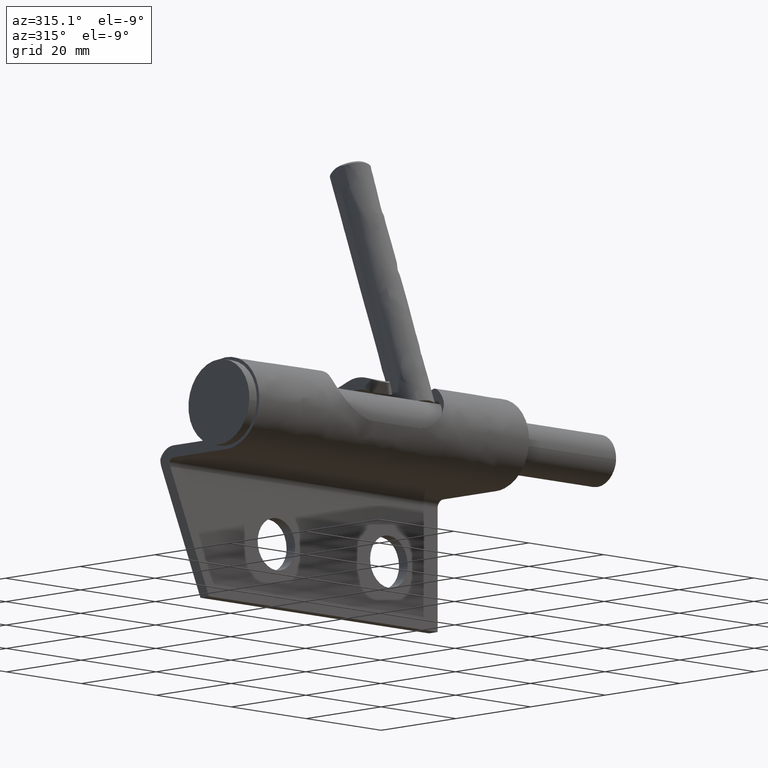
[diagram: clean part render]
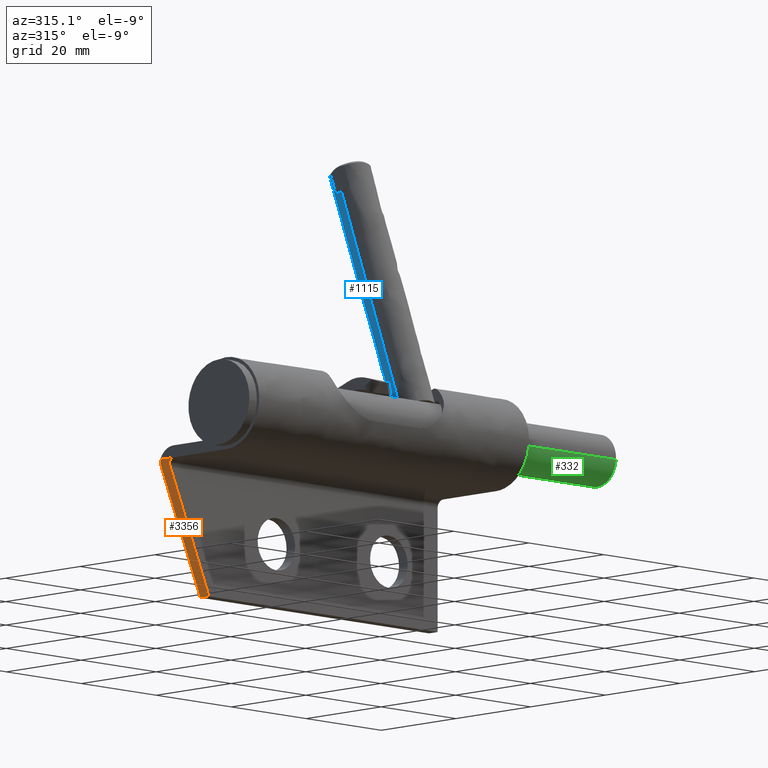
[diagram: same view with three faces highlighted in distinct colors, each labeled with its STEP entity id]
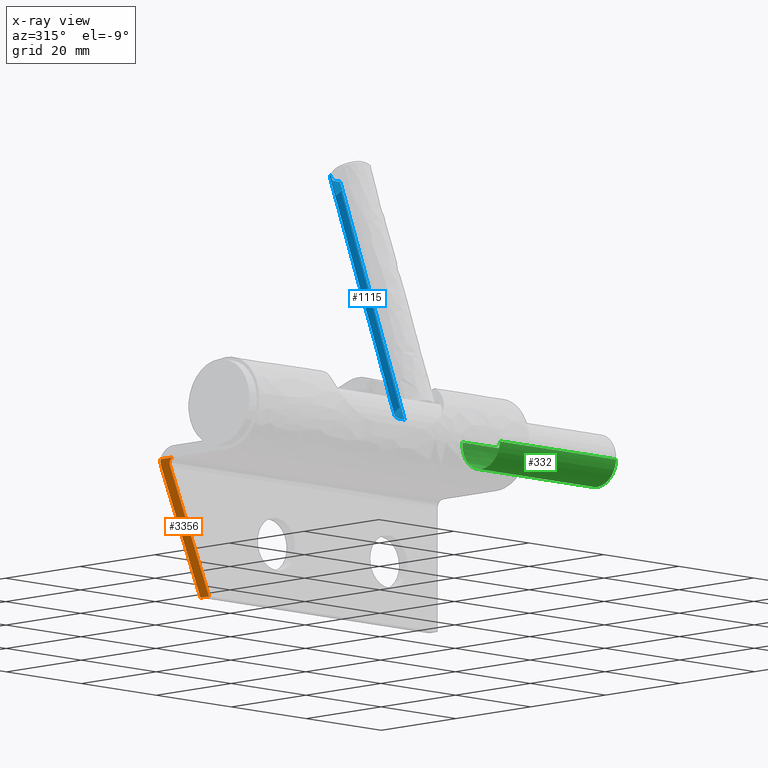
[diagram: x-ray of the same camera — body ghosted, the three highlighted faces saturated]
A machine part, auxiliary view with three faces highlighted in distinct colors.
The next image is the same camera in x-ray (body ghosted, the three faces saturated) — at least one of them is partly hidden behind the body in this view.
Their STEP definitions:

[orange] entity #3356 — the highlighted face is a freeform B-spline surface patch.
#3202=CARTESIAN_POINT('',(-59.0,-0.308580661107719,13.199996999999900));
#3203=VERTEX_POINT('',#3202);
#3239=CARTESIAN_POINT('',(-58.345239326814003,0.0,11.699999999999999));
#3240=VERTEX_POINT('',#3239);
#3246=CARTESIAN_POINT('',(-58.999999999999893,-0.308580661107720,13.199997000000000));
#3247=CARTESIAN_POINT('',(-58.686474749228303,0.0,12.481739238284700));
#3248=CARTESIAN_POINT('',(-58.345239326814102,0.0,11.699999999999999));
#3256=(BOUNDED_CURVE()B_SPLINE_CURVE(2,(#3246,#3247,#3248),.UNSPECIFIED.,.F.,.U.)CURVE()GEOMETRIC_REPRESENTATION_ITEM()QUASI_UNIFORM_CURVE()RATIONAL_B_SPLINE_CURVE((1.0,0.979488275291329,1.0))REPRESENTATION_ITEM(''));
#3257=EDGE_CURVE('',#3203,#3240,#3256,.T.);
#3276=CARTESIAN_POINT('',(-58.345238017290100,-2.299988000000085,11.699996999999900));
#3277=VERTEX_POINT('',#3276);
#3278=CARTESIAN_POINT('',(-59.0,-3.799988000000045,13.199996999999900));
#3279=VERTEX_POINT('',#3278);
#3280=CARTESIAN_POINT('',(-58.345238017290100,-2.299988000000085,11.699996999999900));
#3281=CARTESIAN_POINT('',(-58.999999999999766,-2.299988347711504,13.199996999999899));
#3282=CARTESIAN_POINT('',(-59.0,-3.799988000000045,13.199996999999900));
#3290=(BOUNDED_CURVE()B_SPLINE_CURVE(2,(#3280,#3281,#3282),.UNSPECIFIED.,.F.,.U.)CURVE()GEOMETRIC_REPRESENTATION_ITEM()QUASI_UNIFORM_CURVE()RATIONAL_B_SPLINE_CURVE((1.0,0.707106863142929,1.0))REPRESENTATION_ITEM(''));
#3291=EDGE_CURVE('',#3277,#3279,#3290,.T.);
#3323=CARTESIAN_POINT('',(-47.450550021320161,-3.989797428906502,-13.258739801307531));
#3324=CARTESIAN_POINT('',(-59.549450273722847,-3.989797428906502,14.458737477224011));
#3325=CARTESIAN_POINT('',(-47.450550021320161,0.189809496855537,-13.258739801307531));
#3326=CARTESIAN_POINT('',(-59.549450273722847,0.189809496855537,14.458737477224011));
#3327=B_SPLINE_SURFACE_WITH_KNOTS('',1,1,((#3323,#3325),(#3324,#3326)),.UNSPECIFIED.,.F.,.F.,.U.,(2,2),(2,2),(0.0,30.243047697008009),(0.0,4.179606925762039),.UNSPECIFIED.);
#3328=CARTESIAN_POINT('',(-59.0,-3.799988000000045,13.199996999999900));
#3329=CARTESIAN_POINT('',(-59.0,-0.308580661107719,13.199996999999900));
#3330=QUASI_UNIFORM_CURVE('',1,(#3328,#3329),.UNSPECIFIED.,.F.,.U.);
#3331=EDGE_CURVE('',#3279,#3203,#3330,.T.);
#3332=ORIENTED_EDGE('',*,*,#3331,.T.);
#3333=ORIENTED_EDGE('',*,*,#3257,.T.);
#3334=CARTESIAN_POINT('',(-48.0,-4.336809E-016,-12.0));
#3335=VERTEX_POINT('',#3334);
#3336=CARTESIAN_POINT('',(-58.345239326814003,0.0,11.699999999999999));
#3337=CARTESIAN_POINT('',(-48.0,-4.336809E-016,-12.0));
#3338=QUASI_UNIFORM_CURVE('',1,(#3336,#3337),.UNSPECIFIED.,.F.,.U.);
#3339=EDGE_CURVE('',#3240,#3335,#3338,.T.);
#3340=ORIENTED_EDGE('',*,*,#3339,.T.);
#3341=CARTESIAN_POINT('',(-48.0,-2.299988000000065,-12.0));
#3342=VERTEX_POINT('',#3341);
#3343=CARTESIAN_POINT('',(-48.0,-2.299988000000065,-12.0));
#3344=CARTESIAN_POINT('',(-48.0,-4.336809E-016,-12.0));
#3345=QUASI_UNIFORM_CURVE('',1,(#3343,#3344),.UNSPECIFIED.,.F.,.U.);
#3346=EDGE_CURVE('',#3342,#3335,#3345,.T.);
#3347=ORIENTED_EDGE('',*,*,#3346,.F.);
#3348=CARTESIAN_POINT('',(-58.345238017290100,-2.299988000000085,11.699996999999900));
#3349=CARTESIAN_POINT('',(-48.0,-2.299988000000065,-12.0));
#3350=QUASI_UNIFORM_CURVE('',1,(#3348,#3349),.UNSPECIFIED.,.F.,.U.);
#3351=EDGE_CURVE('',#3277,#3342,#3350,.T.);
#3352=ORIENTED_EDGE('',*,*,#3351,.F.);
#3353=ORIENTED_EDGE('',*,*,#3291,.T.);
#3354=EDGE_LOOP('',(#3332,#3333,#3340,#3347,#3352,#3353));
#3355=FACE_OUTER_BOUND('',#3354,.T.);
#3356=ADVANCED_FACE('',(#3355),#3327,.T.);

[blue] entity #1115 — the highlighted face is a freeform B-spline surface patch.
#717=CARTESIAN_POINT('',(-8.972446960488702,4.252100916761393,72.962776608670737));
#718=VERTEX_POINT('',#717);
#724=CARTESIAN_POINT('',(-10.499999999999799,2.801789091536420,73.490647110882293));
#725=VERTEX_POINT('',#724);
#726=CARTESIAN_POINT('',(-10.499999999999799,2.801789091536407,73.490647110882250));
#727=CARTESIAN_POINT('',(-9.953863932016629,3.729361606149494,73.153038218359896));
#728=CARTESIAN_POINT('',(-8.972446960488702,4.252100916761393,72.962776608670737));
#736=(BOUNDED_CURVE()B_SPLINE_CURVE(2,(#726,#727,#728),.UNSPECIFIED.,.F.,.U.)B_SPLINE_CURVE_WITH_KNOTS((3,3),(0.0,0.257814401208972),.UNSPECIFIED.)CURVE()GEOMETRIC_REPRESENTATION_ITEM()RATIONAL_B_SPLINE_CURVE((1.0,0.928548137186731,0.930781551279336))REPRESENTATION_ITEM(''));
#737=EDGE_CURVE('',#725,#718,#736,.T.);
#873=CARTESIAN_POINT('',(-6.097572105836812,4.643964010710496,72.820150061328931));
#874=VERTEX_POINT('',#873);
#888=CARTESIAN_POINT('',(-8.972446960488702,4.252100916761393,72.962776608670737));
#889=CARTESIAN_POINT('',(-8.054804407496985,4.740871591668365,72.784878575198420));
#890=CARTESIAN_POINT('',(-6.999999999999800,4.740871591668365,72.784878575198434));
#891=CARTESIAN_POINT('',(-6.542893528389560,4.740871591668365,72.784878575198434));
#892=CARTESIAN_POINT('',(-6.097572105836812,4.643964010710496,72.820150061328931));
#900=(BOUNDED_CURVE()B_SPLINE_CURVE(2,(#888,#889,#890,#891,#892),.UNSPECIFIED.,.F.,.U.)B_SPLINE_CURVE_WITH_KNOTS((3,2,3),(0.257814401208972,0.500000000000000,0.609102255925275),.UNSPECIFIED.)CURVE()GEOMETRIC_REPRESENTATION_ITEM()RATIONAL_B_SPLINE_CURVE((0.930781551279336,0.932879575000391,1.0,0.969762901581777,0.952721545763805))REPRESENTATION_ITEM(''));
#901=EDGE_CURVE('',#718,#874,#900,.T.);
#979=CARTESIAN_POINT('',(-10.999828692004799,-0.589773091649756,69.936275030934667));
#980=VERTEX_POINT('',#979);
#994=CARTESIAN_POINT('',(-10.999829083066070,-16.322708042068310,26.710404519297480));
#995=VERTEX_POINT('',#994);
#996=CARTESIAN_POINT('',(-10.999828692004799,-0.589773091649756,69.936275030934667));
#997=CARTESIAN_POINT('',(-10.999829083066070,-16.322708042068310,26.710404519297480));
#998=QUASI_UNIFORM_CURVE('',1,(#996,#997),.UNSPECIFIED.,.F.,.U.);
#999=EDGE_CURVE('',#980,#995,#998,.T.);
#1016=CARTESIAN_POINT('',(-6.097572018080046,-12.628061885795590,25.365662865755141));
#1017=VERTEX_POINT('',#1016);
#1033=CARTESIAN_POINT('',(-6.097572105836812,4.643964010710496,72.820150061328931));
#1034=CARTESIAN_POINT('',(-6.097572018080046,-12.628061885795590,25.365662865755141));
#1035=QUASI_UNIFORM_CURVE('',1,(#1033,#1034),.UNSPECIFIED.,.F.,.U.);
#1036=EDGE_CURVE('',#874,#1017,#1035,.T.);
#1041=CARTESIAN_POINT('',(-10.999828694137539,1.381118870329172,75.351253760645349));
#1042=CARTESIAN_POINT('',(-11.034734670336956,5.139728239166312,73.983231394257558));
#1043=CARTESIAN_POINT('',(-7.034905976199223,5.172529126205261,73.971292843931295));
#1044=CARTESIAN_POINT('',(-6.560127514590722,5.176422581620133,73.969875741602380));
#1045=CARTESIAN_POINT('',(-6.097572105860898,5.075764667030032,74.006512237976509));
#1046=CARTESIAN_POINT('',(-10.999828694137539,-16.765303711278740,25.494383286953660));
#1047=CARTESIAN_POINT('',(-11.034734670336956,-13.006694342441595,24.126360920565865));
#1048=CARTESIAN_POINT('',(-7.034905976199223,-12.973893455402649,24.114422370239598));
#1049=CARTESIAN_POINT('',(-6.560127514590722,-12.969999999987772,24.113005267910687));
#1050=CARTESIAN_POINT('',(-6.097572105860898,-13.070657914577872,24.149641764284819));
#1058=(BOUNDED_SURFACE()B_SPLINE_SURFACE(2,1,((#1041,#1046),(#1042,#1047),(#1043,#1048),(#1044,#1049),(#1045,#1050)),.UNSPECIFIED.,.F.,.F.,.U.)B_SPLINE_SURFACE_WITH_KNOTS((3,2,3),(2,2),(0.0,6.627385519656808,7.687767202801896),(0.0,53.056575331816887),.UNSPECIFIED.)GEOMETRIC_REPRESENTATION_ITEM()RATIONAL_B_SPLINE_SURFACE(((1.0,1.0),(0.707106781186548,0.707106781186548),(1.0,1.0),(0.953137084989848,0.953137084989848),(0.921270302782944,0.921270302782944)))REPRESENTATION_ITEM('')SURFACE());
#1059=ORIENTED_EDGE('',*,*,#737,.T.);
#1060=ORIENTED_EDGE('',*,*,#901,.T.);
#1061=ORIENTED_EDGE('',*,*,#1036,.T.);
#1062=CARTESIAN_POINT('',(-6.999999999999800,-12.531153929923150,25.330391243166851));
#1063=VERTEX_POINT('',#1062);
#1064=CARTESIAN_POINT('',(-6.999999999999800,-12.531153929923150,25.330391243166851));
#1065=CARTESIAN_POINT('',(-6.542893439486559,-12.531153929923152,25.330391243166851));
#1066=CARTESIAN_POINT('',(-6.097572018080046,-12.628061885795592,25.365662865755141));
#1074=(BOUNDED_CURVE()B_SPLINE_CURVE(2,(#1064,#1065,#1066),.UNSPECIFIED.,.F.,.U.)B_SPLINE_CURVE_WITH_KNOTS((3,3),(0.0,0.038577028218024),.UNSPECIFIED.)CURVE()GEOMETRIC_REPRESENTATION_ITEM()RATIONAL_B_SPLINE_CURVE((1.0,0.954804200131862,0.923556557438518))REPRESENTATION_ITEM(''));
#1075=EDGE_CURVE('',#1063,#1017,#1074,.T.);
#1076=ORIENTED_EDGE('',*,*,#1075,.F.);
#1077=CARTESIAN_POINT('',(-10.999829083066075,-16.322708042068314,26.710404519297473));
#1078=CARTESIAN_POINT('',(-10.999981779050110,-16.306307910794192,26.704435357782387));
#1079=CARTESIAN_POINT('',(-10.999981779050110,-16.289907151517649,26.698465967693050));
#1080=CARTESIAN_POINT('',(-10.999981779050110,-12.531153929923146,25.330391243166847));
#1081=CARTESIAN_POINT('',(-6.999999999999800,-12.531153929923150,25.330391243166851));
#1089=(BOUNDED_CURVE()B_SPLINE_CURVE(2,(#1077,#1078,#1079,#1080,#1081),.UNSPECIFIED.,.F.,.U.)B_SPLINE_CURVE_WITH_KNOTS((3,2,3),(0.748460105634809,0.750000000000000,1.0),.UNSPECIFIED.)CURVE()GEOMETRIC_REPRESENTATION_ITEM()RATIONAL_B_SPLINE_CURVE((0.996414028030505,0.998195901530986,1.0,0.707106781186548,1.0))REPRESENTATION_ITEM(''));
#1090=EDGE_CURVE('',#995,#1063,#1089,.T.);
#1091=ORIENTED_EDGE('',*,*,#1090,.F.);
#1092=ORIENTED_EDGE('',*,*,#999,.F.);
#1093=CARTESIAN_POINT('',(-10.499999999999799,1.262698015519182,69.262030474235786));
#1094=VERTEX_POINT('',#1093);
#1095=CARTESIAN_POINT('',(-10.999828692004801,-0.589773091649756,69.936275030934667));
#1096=CARTESIAN_POINT('',(-11.009003988805139,0.398191645178518,69.576685160172602));
#1097=CARTESIAN_POINT('',(-10.499999999999810,1.262698015519174,69.262030474235758));
#1105=(BOUNDED_CURVE()B_SPLINE_CURVE(2,(#1095,#1096,#1097),.UNSPECIFIED.,.F.,.U.)B_SPLINE_CURVE_WITH_KNOTS((3,3),(0.491550139312004,1.0),.UNSPECIFIED.)CURVE()GEOMETRIC_REPRESENTATION_ITEM()RATIONAL_B_SPLINE_CURVE((0.937519927451185,0.936445880540015,1.0))REPRESENTATION_ITEM(''));
#1106=EDGE_CURVE('',#980,#1094,#1105,.T.);
#1107=ORIENTED_EDGE('',*,*,#1106,.T.);
#1108=CARTESIAN_POINT('',(-10.499999999999799,2.801789091536420,73.490647110882293));
#1109=CARTESIAN_POINT('',(-10.499999999999799,1.262698015519182,69.262030474235786));
#1110=QUASI_UNIFORM_CURVE('',1,(#1108,#1109),.UNSPECIFIED.,.F.,.U.);
#1111=EDGE_CURVE('',#725,#1094,#1110,.T.);
#1112=ORIENTED_EDGE('',*,*,#1111,.F.);
#1113=EDGE_LOOP('',(#1059,#1060,#1061,#1076,#1091,#1092,#1107,#1112));
#1114=FACE_OUTER_BOUND('',#1113,.T.);
#1115=ADVANCED_FACE('',(#1114),#1058,.T.);

[green] entity #332 — the highlighted face is a freeform B-spline surface patch.
#70=CARTESIAN_POINT('',(39.999999999941537,-16.871959773955219,17.128909234164428));
#71=VERTEX_POINT('',#70);
#72=CARTESIAN_POINT('',(40.0,-18.0,17.000000000000089));
#73=VERTEX_POINT('',#72);
#74=CARTESIAN_POINT('',(39.999999999941529,-16.871959773955219,17.128909234164425));
#75=CARTESIAN_POINT('',(40.000000000000014,-17.428614196088265,17.000000000000089));
#76=CARTESIAN_POINT('',(40.0,-18.0,17.000000000000089));
#84=(BOUNDED_CURVE()B_SPLINE_CURVE(2,(#74,#75,#76),.UNSPECIFIED.,.F.,.U.)B_SPLINE_CURVE_WITH_KNOTS((3,3),(0.961422971751536,1.0),.UNSPECIFIED.)CURVE()GEOMETRIC_REPRESENTATION_ITEM()RATIONAL_B_SPLINE_CURVE((0.923556557389206,0.954804200096200,1.0))REPRESENTATION_ITEM(''));
#85=EDGE_CURVE('',#71,#73,#84,.T.);
#143=CARTESIAN_POINT('',(39.999999999821512,-13.000190384512200,21.956367321195469));
#144=VERTEX_POINT('',#143);
#150=CARTESIAN_POINT('',(40.0,-13.034952368188980,22.590171173344530));
#151=VERTEX_POINT('',#150);
#152=CARTESIAN_POINT('',(40.000000000000007,-13.034952368188980,22.590171173344537));
#153=CARTESIAN_POINT('',(40.000000000000007,-13.000000000000085,22.296120598320940));
#154=CARTESIAN_POINT('',(40.0,-13.000000000000091,22.0));
#155=CARTESIAN_POINT('',(40.0,-13.000000000000087,21.978183244585296));
#156=CARTESIAN_POINT('',(39.999999999821512,-13.000190384512198,21.956367321195469));
#164=(BOUNDED_CURVE()B_SPLINE_CURVE(2,(#152,#153,#154,#155,#156),.UNSPECIFIED.,.F.,.U.)B_SPLINE_CURVE_WITH_KNOTS((3,2,3),(0.729562473511508,0.750000000000000,0.751539894427368),.UNSPECIFIED.)CURVE()GEOMETRIC_REPRESENTATION_ITEM()RATIONAL_B_SPLINE_CURVE((0.956026754179779,0.976055948328802,1.0,0.998195901458141,0.996414027886610))REPRESENTATION_ITEM(''));
#165=EDGE_CURVE('',#151,#144,#164,.T.);
#182=CARTESIAN_POINT('',(40.0,-22.990673992100682,21.694757302185678));
#183=VERTEX_POINT('',#182);
#199=CARTESIAN_POINT('',(40.0,-18.0,17.000000000000089));
#200=CARTESIAN_POINT('',(40.000000000000014,-22.703530334263935,17.000000000000085));
#201=CARTESIAN_POINT('',(39.999999999999993,-22.990673992100675,21.694757302185678));
#209=(BOUNDED_CURVE()B_SPLINE_CURVE(2,(#199,#200,#201),.UNSPECIFIED.,.F.,.U.)B_SPLINE_CURVE_WITH_KNOTS((3,3),(0.0,0.239332962232285),.UNSPECIFIED.)CURVE()GEOMETRIC_REPRESENTATION_ITEM()RATIONAL_B_SPLINE_CURVE((1.0,0.719603993294511,0.976072041652448))REPRESENTATION_ITEM(''));
#210=EDGE_CURVE('',#73,#183,#209,.T.);
#229=CARTESIAN_POINT('',(39.999999999821505,-13.000190384512198,21.956367321195465));
#230=CARTESIAN_POINT('',(40.0,-13.034563768490560,18.017567907920899));
#231=CARTESIAN_POINT('',(39.999999999941537,-16.871959773955215,17.128909234164432));
#239=(BOUNDED_CURVE()B_SPLINE_CURVE(2,(#229,#230,#231),.UNSPECIFIED.,.F.,.U.)B_SPLINE_CURVE_WITH_KNOTS((3,3),(0.751539894427367,0.961422971751536),.UNSPECIFIED.)CURVE()GEOMETRIC_REPRESENTATION_ITEM()RATIONAL_B_SPLINE_CURVE((0.996414027886612,0.753549905548908,0.923556557389206))REPRESENTATION_ITEM(''));
#240=EDGE_CURVE('',#144,#71,#239,.T.);
#260=CARTESIAN_POINT('',(40.775000000000006,-13.034952368181765,22.590171173283792));
#261=CARTESIAN_POINT('',(40.775000000000013,-13.018061922757067,22.448073643189883));
#262=CARTESIAN_POINT('',(40.775000000000013,-13.009326007890760,22.305242697674281));
#263=CARTESIAN_POINT('',(40.775000000000006,-12.704083310216477,17.314568705565033));
#264=CARTESIAN_POINT('',(40.775000000000013,-17.694757302325719,17.009326007890760));
#265=CARTESIAN_POINT('',(40.775000000000006,-22.685431294434963,16.704083310216472));
#266=CARTESIAN_POINT('',(40.775000000000013,-22.990673992109240,21.694757302325719));
#267=CARTESIAN_POINT('',(8.205625000000206,-13.034952368181765,22.590171173283792));
#268=CARTESIAN_POINT('',(8.205625000000204,-13.018061922757067,22.448073643189883));
#269=CARTESIAN_POINT('',(8.205625000000204,-13.009326007890760,22.305242697674281));
#270=CARTESIAN_POINT('',(8.205625000000204,-12.704083310216477,17.314568705565033));
#271=CARTESIAN_POINT('',(8.205625000000204,-17.694757302325719,17.009326007890760));
#272=CARTESIAN_POINT('',(8.205625000000204,-22.685431294434963,16.704083310216472));
#273=CARTESIAN_POINT('',(8.205625000000204,-22.990673992109240,21.694757302325719));
#281=(BOUNDED_SURFACE()B_SPLINE_SURFACE(2,1,((#260,#267),(#261,#268),(#262,#269),(#263,#270),(#264,#271),(#265,#272),(#266,#273)),.UNSPECIFIED.,.F.,.F.,.U.)B_SPLINE_SURFACE_WITH_KNOTS((3,2,2,3),(2,2),(0.0,0.331370849898470,8.615642097360221,16.899913344821972),(0.0,32.569374999999802),.UNSPECIFIED.)GEOMETRIC_REPRESENTATION_ITEM()RATIONAL_B_SPLINE_SURFACE(((0.977505800795127,0.977505800795127),(0.988284271247462,0.988284271247462),(1.0,1.0),(0.707106781186548,0.707106781186548),(1.0,1.0),(0.707106781186548,0.707106781186548),(1.0,1.0)))REPRESENTATION_ITEM('')SURFACE());
#282=ORIENTED_EDGE('',*,*,#165,.T.);
#283=ORIENTED_EDGE('',*,*,#240,.T.);
#284=ORIENTED_EDGE('',*,*,#85,.T.);
#285=ORIENTED_EDGE('',*,*,#210,.T.);
#286=CARTESIAN_POINT('',(9.000000000000197,-22.990673992100682,21.694757302185678));
#287=VERTEX_POINT('',#286);
#288=CARTESIAN_POINT('',(40.0,-22.990673992100682,21.694757302185678));
#289=CARTESIAN_POINT('',(9.000000000000197,-22.990673992100682,21.694757302185678));
#290=QUASI_UNIFORM_CURVE('',1,(#288,#289),.UNSPECIFIED.,.F.,.U.);
#291=EDGE_CURVE('',#183,#287,#290,.T.);
#292=ORIENTED_EDGE('',*,*,#291,.T.);
#293=CARTESIAN_POINT('',(9.000000000000199,-18.0,17.000000000000089));
#294=VERTEX_POINT('',#293);
#295=CARTESIAN_POINT('',(9.000000000000199,-18.0,17.000000000000089));
#296=CARTESIAN_POINT('',(9.000000000000199,-22.703530334263959,17.000000000000085));
#297=CARTESIAN_POINT('',(9.000000000000197,-22.990673992100682,21.694757302185682));
#305=(BOUNDED_CURVE()B_SPLINE_CURVE(2,(#295,#296,#297),.UNSPECIFIED.,.F.,.U.)B_SPLINE_CURVE_WITH_KNOTS((3,3),(0.500000000000000,0.739332962232286),.UNSPECIFIED.)CURVE()GEOMETRIC_REPRESENTATION_ITEM()RATIONAL_B_SPLINE_CURVE((1.0,0.719603993294509,0.976072041652451))REPRESENTATION_ITEM(''));
#306=EDGE_CURVE('',#294,#287,#305,.T.);
#307=ORIENTED_EDGE('',*,*,#306,.F.);
#308=CARTESIAN_POINT('',(9.000000000000199,-13.034952368188980,22.590171173344530));
#309=VERTEX_POINT('',#308);
#310=CARTESIAN_POINT('',(9.000000000000199,-13.034952368188975,22.590171173344530));
#311=CARTESIAN_POINT('',(9.000000000000199,-13.000000000000094,22.296120598320940));
#312=CARTESIAN_POINT('',(9.000000000000199,-13.000000000000091,22.0));
#313=CARTESIAN_POINT('',(9.000000000000199,-13.000000000000087,17.000000000000085));
#314=CARTESIAN_POINT('',(9.000000000000199,-18.0,17.000000000000089));
#322=(BOUNDED_CURVE()B_SPLINE_CURVE(2,(#310,#311,#312,#313,#314),.UNSPECIFIED.,.F.,.U.)B_SPLINE_CURVE_WITH_KNOTS((3,2,3),(0.229562473511509,0.250000000000000,0.500000000000000),.UNSPECIFIED.)CURVE()GEOMETRIC_REPRESENTATION_ITEM()RATIONAL_B_SPLINE_CURVE((0.956026754179780,0.976055948328802,1.0,0.707106781186548,1.0))REPRESENTATION_ITEM(''));
#323=EDGE_CURVE('',#309,#294,#322,.T.);
#324=ORIENTED_EDGE('',*,*,#323,.F.);
#325=CARTESIAN_POINT('',(40.0,-13.034952368188980,22.590171173344530));
#326=CARTESIAN_POINT('',(9.000000000000199,-13.034952368188980,22.590171173344530));
#327=QUASI_UNIFORM_CURVE('',1,(#325,#326),.UNSPECIFIED.,.F.,.U.);
#328=EDGE_CURVE('',#151,#309,#327,.T.);
#329=ORIENTED_EDGE('',*,*,#328,.F.);
#330=EDGE_LOOP('',(#282,#283,#284,#285,#292,#307,#324,#329));
#331=FACE_OUTER_BOUND('',#330,.T.);
#332=ADVANCED_FACE('',(#331),#281,.T.);